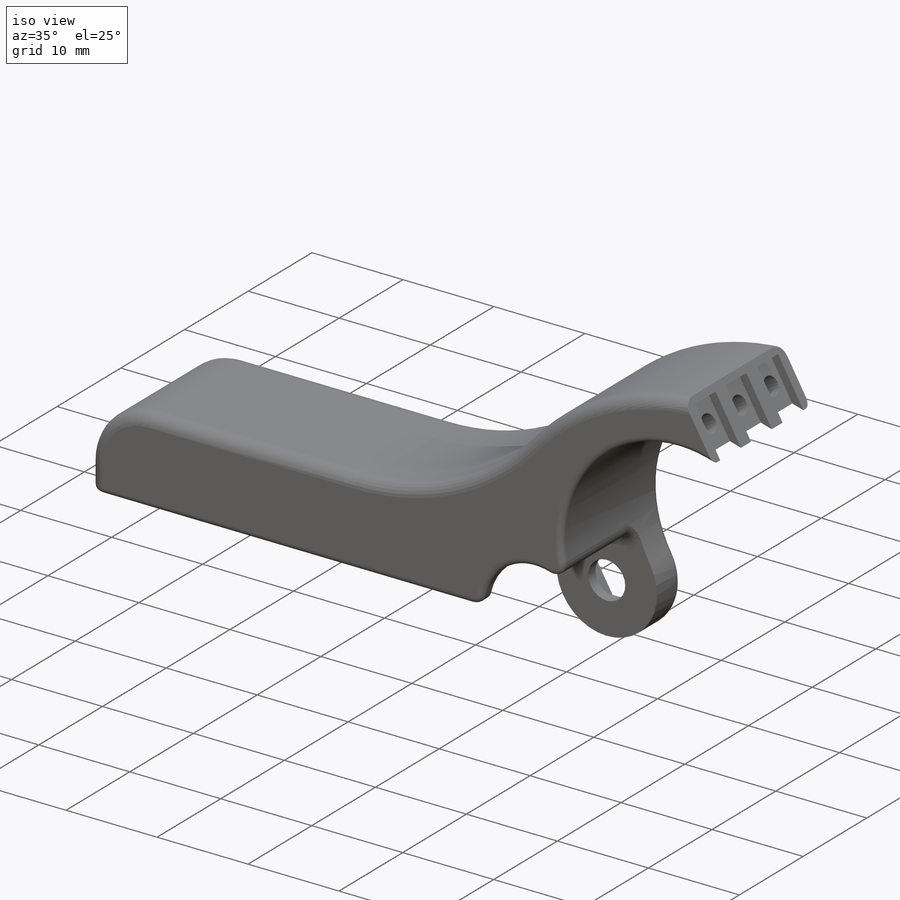
[diagram: iso view]
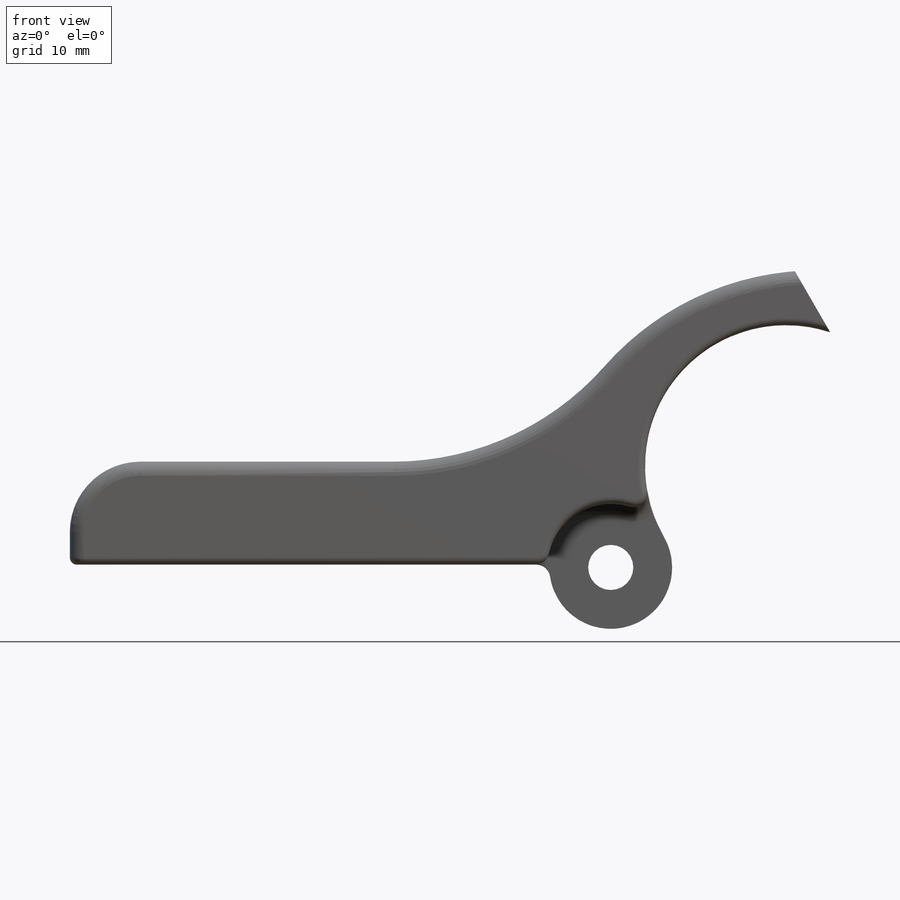
[diagram: front view]
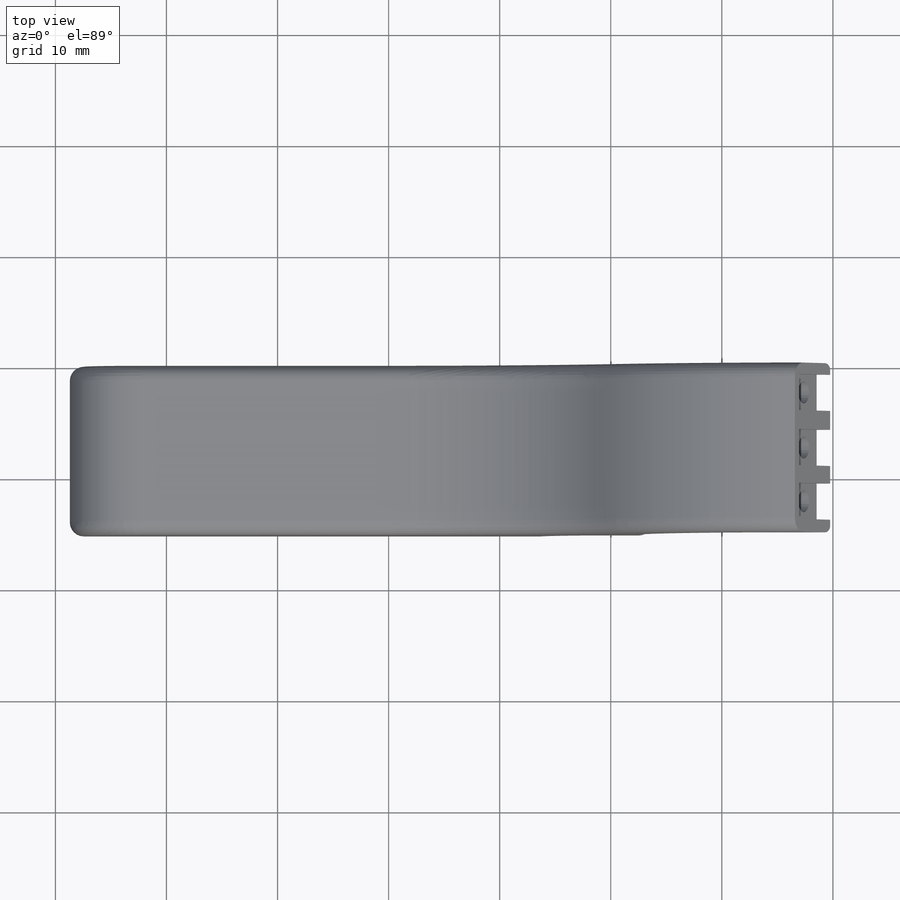
[diagram: top view]
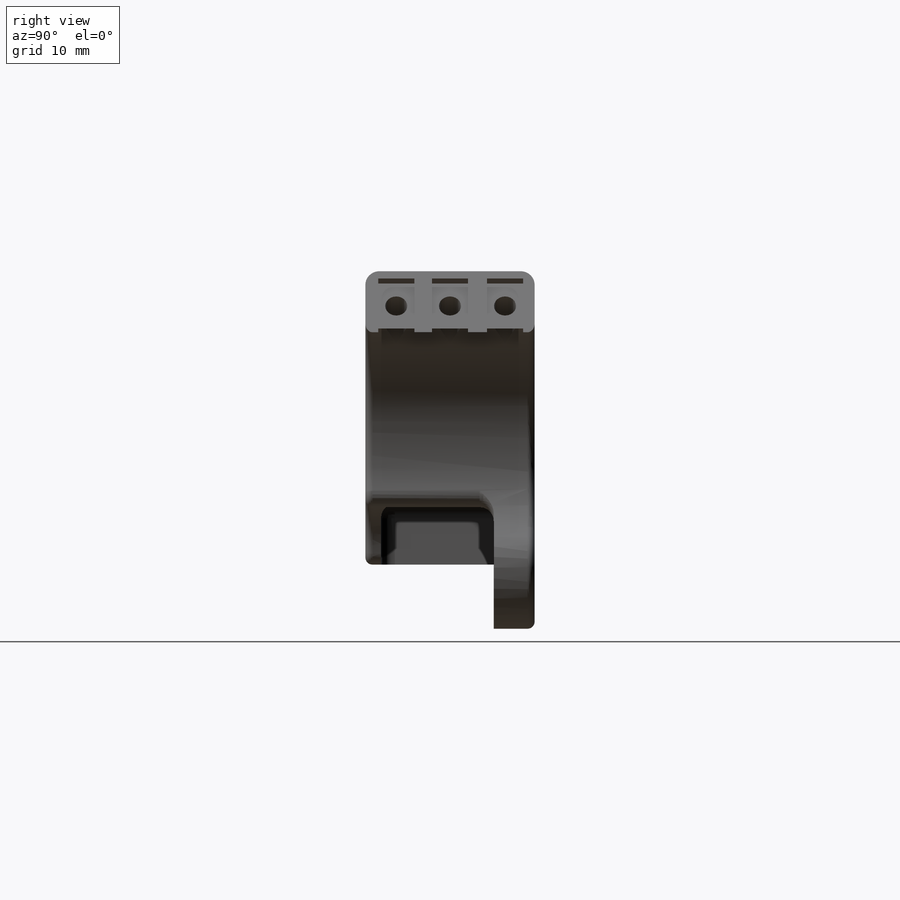
[diagram: right view]
SOLIDWORKS PART (.sldprt)
format: sldprt  version: not decoded by parser v0  size: 465,408 bytes
history: native  units: mm
features: sketch x8, fillet x8, cut_extrude x7, material x1, extrude x1 (+11 scaffold rows collapsed)
feature tree (36):
  scaffold x11  (default folders/planes/origin — collapsed)
  material  "Material <not specified>"
  sketch  "Sketch1"  dims[c1.D1=11.049mm c1.D3=25.4mm c1.D7=25.4mm c1.D2=43.18mm c1.D4=9.525mm c1.D5=44.45mm c1.D6=6.35mm c1.D8=43.18mm c1.D9=43.18mm c2.D9=60.0deg c2.D10=~107.619638mm c2.D5=~155.006366mm c3.D5=30.0deg]
  extrude  "Boss-Extrude1"  Depth=15.24mm
  sketch  "Sketch2"  dims[D1=11.43mm]
  cut_extrude  "Cut-Extrude1"  Depth=3.683mm
  sketch  "Sketch3"  dims[D1=4.064mm]
  cut_extrude  "Cut-Extrude2"  [1 undecoded]
  sketch  "Sketch4"  dims[D1=6.731mm]
  cut_extrude  "Cut-Extrude3"  Depth=2.54mm
  sketch  "Sketch5"  dims[D1=0.0mm]
  cut_extrude  "Cut-Extrude4"  Depth=0.254mm
  sketch  "Sketch6"  dims[c1.D1=1.397mm c1.D2=1.397mm c1.D3=1.397mm c1.D4=1.397mm c2.D1=1.397mm]
  cut_extrude  "Cut-Extrude6"  Depth=5.461mm
  fillet  "Fillet8"  Radius=25.4mm
  fillet  "Fillet1"  Radius=6.35mm
  fillet  "Fillet2"  Radius=1.27mm
  fillet  "Fillet3"  Radius=1.27mm
  fillet  "Fillet4"  Radius=0.635mm
  fillet  "Fillet5"  Radius=1.27mm
  fillet  "Fillet6"  Radius=1.27mm
  fillet  "Fillet7"  Radius=1.27mm
  sketch  "Sketch7"  dims[D1=3.2512mm D2=5.588mm D3=1.5875mm D4=~1.70688mm]
  cut_extrude  "Cut-Extrude7"  Depth=0.889mm
  sketch  "Sketch8"  dims[D1=~1.98374mm]
  cut_extrude  "Cut-Extrude8"  Depth=8.89mm
decode coverage: 23 of 24 modeling features carry decoded parameters
note: ~ marks probable driven/reference dimensions
note: 1 parameter value undecoded
note: suppression state not decoded; provenance and decode notes live in map.json
